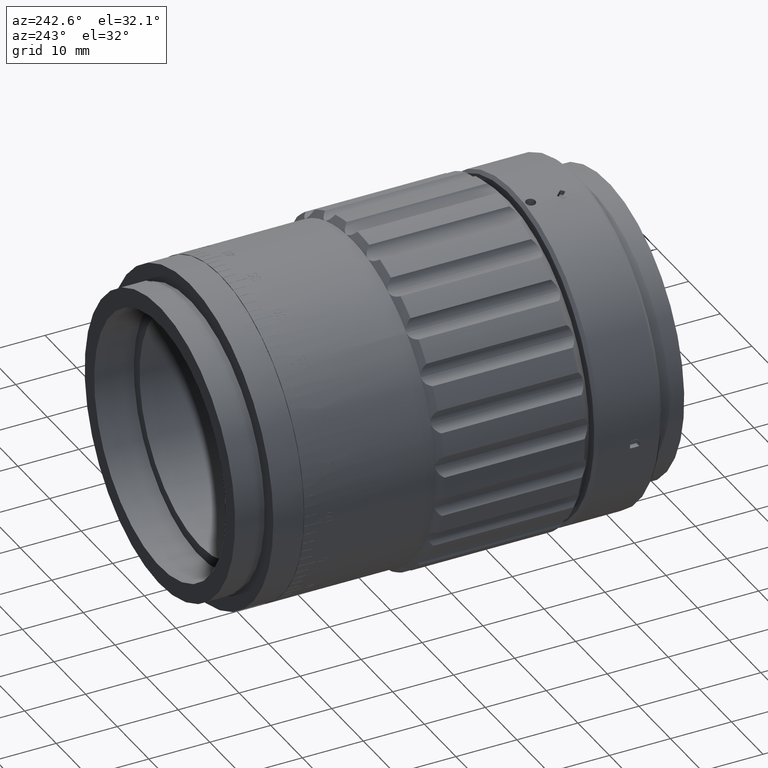
[diagram: clean part render]
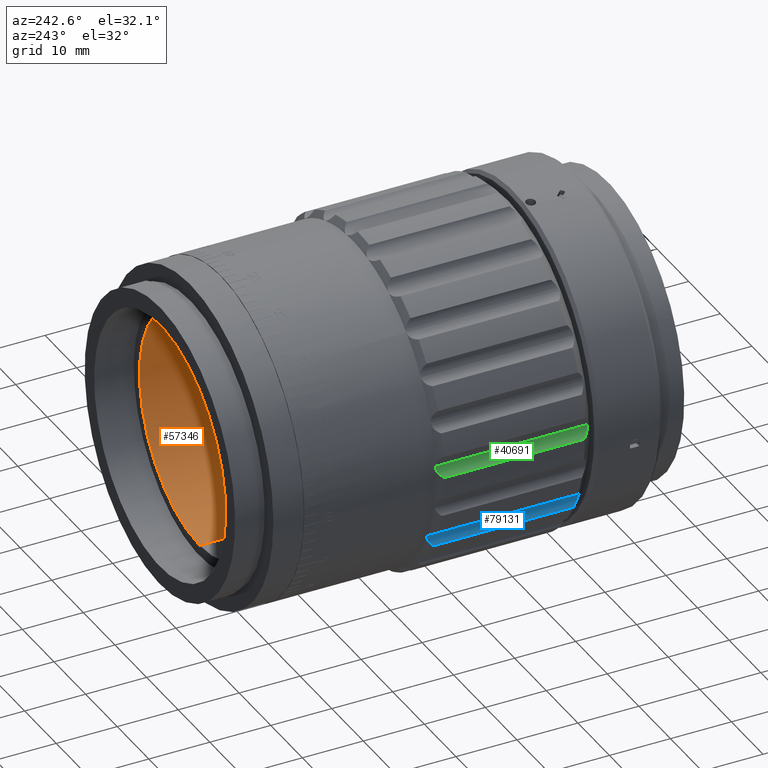
[diagram: same view with three faces highlighted in distinct colors, each labeled with its STEP entity id]
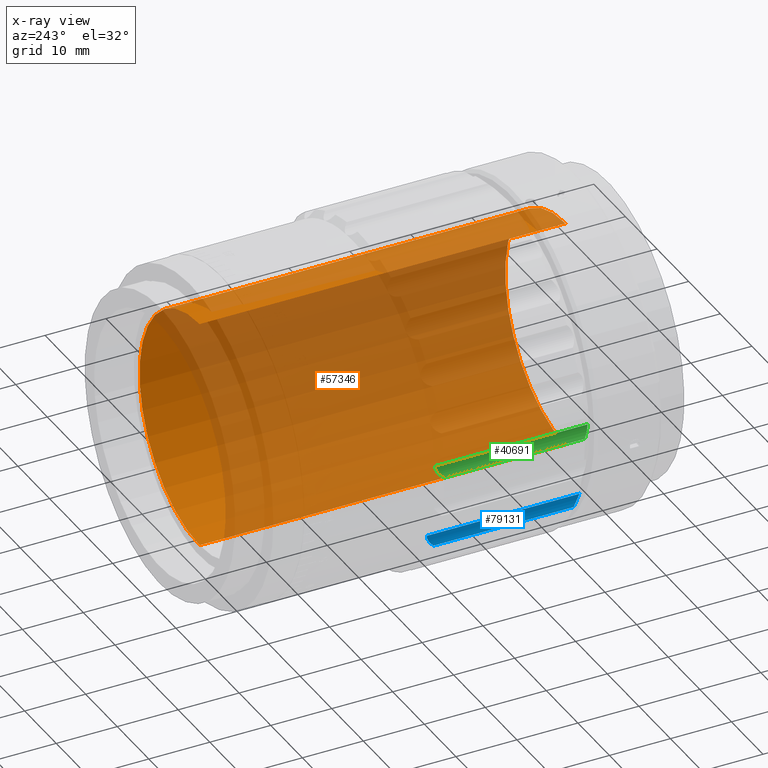
[diagram: x-ray of the same camera — body ghosted, the three highlighted faces saturated]
A machine part, auxiliary view with three faces highlighted in distinct colors.
The next image is the same camera in x-ray (body ghosted, the three faces saturated) — at least one of them is partly hidden behind the body in this view.
Their STEP definitions:

[orange] entity #57346 — the highlighted cylindrical surface (partial cylindrical patch) has radius 19 mm, axis along (0, 1, 0).
#149 = VERTEX_POINT ( 'NONE', #51532 ) ;
#308 = CARTESIAN_POINT ( 'NONE',  ( 0.0000000000000000000, -28.58506430359079100, 0.0000000000000000000 ) ) ;
#2826 = LINE ( 'NONE', #38798, #59149 ) ;
#5762 = CARTESIAN_POINT ( 'NONE',  ( 0.0000000000000000000, -28.58506430359079100, 19.00000000000000400 ) ) ;
#9082 = AXIS2_PLACEMENT_3D ( 'NONE', #12824, #39095, #58891 ) ;
#9219 = CARTESIAN_POINT ( 'NONE',  ( 2.326828918379971400E-015, 50.21546698855554800, -19.00000000000000400 ) ) ;
#9410 = CARTESIAN_POINT ( 'NONE',  ( 0.0000000000000000000, 31.41493569640920600, 19.00000000000000400 ) ) ;
#10496 = ORIENTED_EDGE ( 'NONE', *, *, #77984, .F. ) ;
#12243 = AXIS2_PLACEMENT_3D ( 'NONE', #308, #86326, #72298 ) ;
#12824 = CARTESIAN_POINT ( 'NONE',  ( 0.0000000000000000000, 31.41493569640920600, 0.0000000000000000000 ) ) ;
#15048 = VERTEX_POINT ( 'NONE', #5762 ) ;
#16673 = VECTOR ( 'NONE', #35498, 1000.000000000000000 ) ;
#18229 = VERTEX_POINT ( 'NONE', #77287 ) ;
#18421 = EDGE_CURVE ( 'NONE', #38336, #149, #41631, .T. ) ;
#18834 = CYLINDRICAL_SURFACE ( 'NONE', #29089, 19.00000000000000400 ) ;
#27228 = ORIENTED_EDGE ( 'NONE', *, *, #59373, .F. ) ;
#29089 = AXIS2_PLACEMENT_3D ( 'NONE', #78104, #84820, #44915 ) ;
#29319 = FACE_OUTER_BOUND ( 'NONE', #42133, .T. ) ;
#30264 = LINE ( 'NONE', #9219, #16673 ) ;
#35498 = DIRECTION ( 'NONE',  ( -0.0000000000000000000, 1.000000000000000000, -0.0000000000000000000 ) ) ;
#38336 = VERTEX_POINT ( 'NONE', #9410 ) ;
#38798 = CARTESIAN_POINT ( 'NONE',  ( 0.0000000000000000000, 50.21546698855554800, 19.00000000000000400 ) ) ;
#39095 = DIRECTION ( 'NONE',  ( -0.0000000000000000000, 1.000000000000000000, -0.0000000000000000000 ) ) ;
#41631 = CIRCLE ( 'NONE', #9082, 19.00000000000000400 ) ;
#42133 = EDGE_LOOP ( 'NONE', ( #27228, #10496, #67117, #80579 ) ) ;
#44915 = DIRECTION ( 'NONE',  ( 0.0000000000000000000, 0.0000000000000000000, 1.000000000000000000 ) ) ;
#51532 = CARTESIAN_POINT ( 'NONE',  ( 2.326828918379971400E-015, 31.41493569640920600, -19.00000000000000400 ) ) ;
#57346 = ADVANCED_FACE ( 'NONE', ( #29319 ), #18834, .F. ) ;
#58891 = DIRECTION ( 'NONE',  ( 0.0000000000000000000, 0.0000000000000000000, 1.000000000000000000 ) ) ;
#59149 = VECTOR ( 'NONE', #78984, 1000.000000000000000 ) ;
#59373 = EDGE_CURVE ( 'NONE', #18229, #149, #30264, .T. ) ;
#67117 = ORIENTED_EDGE ( 'NONE', *, *, #72872, .T. ) ;
#69251 = CIRCLE ( 'NONE', #12243, 19.00000000000000400 ) ;
#72298 = DIRECTION ( 'NONE',  ( 0.0000000000000000000, 0.0000000000000000000, 1.000000000000000000 ) ) ;
#72872 = EDGE_CURVE ( 'NONE', #15048, #38336, #2826, .T. ) ;
#77287 = CARTESIAN_POINT ( 'NONE',  ( 2.326828918379971400E-015, -28.58506430359079100, -19.00000000000000400 ) ) ;
#77984 = EDGE_CURVE ( 'NONE', #15048, #18229, #69251, .T. ) ;
#78104 = CARTESIAN_POINT ( 'NONE',  ( 0.0000000000000000000, 50.21546698855554800, 0.0000000000000000000 ) ) ;
#78984 = DIRECTION ( 'NONE',  ( -0.0000000000000000000, 1.000000000000000000, -0.0000000000000000000 ) ) ;
#80579 = ORIENTED_EDGE ( 'NONE', *, *, #18421, .T. ) ;
#84820 = DIRECTION ( 'NONE',  ( -0.0000000000000000000, 1.000000000000000000, -0.0000000000000000000 ) ) ;
#86326 = DIRECTION ( 'NONE',  ( -0.0000000000000000000, 1.000000000000000000, -0.0000000000000000000 ) ) ;

[blue] entity #79131 — the highlighted cylindrical surface (edge-blend (fillet) strip) has radius 2 mm, axis along (0, -1, -0).
#1135 = AXIS2_PLACEMENT_3D ( 'NONE', #21131, #41588, #74762 ) ;
#4705 = CARTESIAN_POINT ( 'NONE',  ( 25.35555294008817700, -28.21457821189758900, -6.793999933940936500 ) ) ;
#6621 = CYLINDRICAL_SURFACE ( 'NONE', #1135, 2.000000000000000900 ) ;
#8711 = FACE_OUTER_BOUND ( 'NONE', #32370, .T. ) ;
#9061 = EDGE_CURVE ( 'NONE', #47156, #37376, #35442, .T. ) ;
#10271 = CARTESIAN_POINT ( 'NONE',  ( 25.35555294008817700, -3.214578211897677600, -6.793999933940936500 ) ) ;
#11404 = CARTESIAN_POINT ( 'NONE',  ( 26.03674008737553100, -27.80261297679607700, -5.741797412623846200 ) ) ;
#16695 = B_SPLINE_CURVE_WITH_KNOTS ( 'NONE', 3,
 ( #10271, #83448, #57516, #30708, #31263, #51089, #17544, #17256, #77305, #70322, #24252, #36820 ),
 .UNSPECIFIED., .F., .F.,
 ( 4, 2, 2, 2, 2, 4 ),
 ( 0.002293443254639925900, 0.002866010891116044200, 0.003152294709354099700, 0.003438578527592155200, 0.004011146164068267800, 0.004583713800544380500 ),
 .UNSPECIFIED. ) ;
#17256 = CARTESIAN_POINT ( 'NONE',  ( 26.03500145421320500, -3.625167664365868300, -5.743276939198813700 ) ) ;
#17544 = CARTESIAN_POINT ( 'NONE',  ( 25.85179847188839400, -3.484700486296729700, -5.916610212781281000 ) ) ;
#20073 = ORIENTED_EDGE ( 'NONE', *, *, #85860, .T. ) ;
#21131 = CARTESIAN_POINT ( 'NONE',  ( 27.28740459266632000, -2.714578211897591900, -7.311638024145959300 ) ) ;
#23824 = CARTESIAN_POINT ( 'NONE',  ( 26.71025809580777400, -15.71457821189758900, -5.396722380791423700 ) ) ;
#24252 = CARTESIAN_POINT ( 'NONE',  ( 26.57095742270228900, -4.086351499841624600, -5.438706943282136700 ) ) ;
#25357 = VERTEX_POINT ( 'NONE', #49512 ) ;
#29629 = CARTESIAN_POINT ( 'NONE',  ( 25.35555294008817700, -2.714578211897591900, -6.793999933940936500 ) ) ;
#30708 = CARTESIAN_POINT ( 'NONE',  ( 25.62790973901661600, -3.329652064939127700, -6.191536951654347500 ) ) ;
#31263 = CARTESIAN_POINT ( 'NONE',  ( 25.68124262155243500, -3.364064236255757100, -6.116614672561725600 ) ) ;
#31828 = CARTESIAN_POINT ( 'NONE',  ( 26.71025809580777700, -27.21457821189765600, -5.396722380791422000 ) ) ;
#32370 = EDGE_LOOP ( 'NONE', ( #86196, #20073, #57819, #62638 ) ) ;
#33870 = CARTESIAN_POINT ( 'NONE',  ( 25.35555294008817700, -3.214578211897677600, -6.793999933940936500 ) ) ;
#35442 = LINE ( 'NONE', #29629, #71872 ) ;
#36820 = CARTESIAN_POINT ( 'NONE',  ( 26.71025809580777400, -4.214578211897617200, -5.396722380791427300 ) ) ;
#37376 = VERTEX_POINT ( 'NONE', #63904 ) ;
#41588 = DIRECTION ( 'NONE',  ( 0.0000000000000000000, -1.000000000000000000, 0.0000000000000000000 ) ) ;
#44039 = CARTESIAN_POINT ( 'NONE',  ( 26.71025809580777700, -27.21457821189765600, -5.396722380791422000 ) ) ;
#44681 = CARTESIAN_POINT ( 'NONE',  ( 25.79361144829318800, -27.98722358619831100, -5.978816331310564000 ) ) ;
#47156 = VERTEX_POINT ( 'NONE', #33870 ) ;
#49512 = CARTESIAN_POINT ( 'NONE',  ( 26.71025809580777400, -4.214578211897617200, -5.396722380791427300 ) ) ;
#50901 = EDGE_CURVE ( 'NONE', #25357, #55207, #57881, .T. ) ;
#51089 = CARTESIAN_POINT ( 'NONE',  ( 25.79310948796995400, -3.441570337347433600, -5.979377078098024400 ) ) ;
#51644 = CARTESIAN_POINT ( 'NONE',  ( 26.43456949145854300, -27.46488145372640600, -5.496128974198046400 ) ) ;
#52206 = CARTESIAN_POINT ( 'NONE',  ( 25.85247284668944400, -27.94395996729930700, -5.915890483584274100 ) ) ;
#55207 = VERTEX_POINT ( 'NONE', #44039 ) ;
#55874 = DIRECTION ( 'NONE',  ( 0.0000000000000000000, -1.000000000000000000, 0.0000000000000000000 ) ) ;
#57516 = CARTESIAN_POINT ( 'NONE',  ( 25.48350592457169800, -3.245789140871165700, -6.428378196692915700 ) ) ;
#57819 = ORIENTED_EDGE ( 'NONE', *, *, #50901, .T. ) ;
#57881 = LINE ( 'NONE', #23824, #80858 ) ;
#58906 = CARTESIAN_POINT ( 'NONE',  ( 25.38046732151844900, -28.21457821189758900, -6.701018196604028500 ) ) ;
#59060 = DIRECTION ( 'NONE',  ( 0.0000000000000000000, -1.000000000000000000, 0.0000000000000000000 ) ) ;
#61168 = B_SPLINE_CURVE_WITH_KNOTS ( 'NONE', 3,
 ( #31828, #64741, #51644, #65601, #11404, #52206, #44681, #85423, #71716, #78142, #84573, #72289, #58906, #4705 ),
 .UNSPECIFIED., .F., .F.,
 ( 4, 2, 2, 2, 2, 2, 4 ),
 ( 2.979895395331365200E-007, 0.0005735843058146322200, 0.001146870622089731400, 0.001433513780227277500, 0.001720156938364823800, 0.002006800096502369500, 0.002293443254639916000 ),
 .UNSPECIFIED. ) ;
#62638 = ORIENTED_EDGE ( 'NONE', *, *, #76867, .T. ) ;
#63904 = CARTESIAN_POINT ( 'NONE',  ( 25.35555294008817700, -28.21457821189758900, -6.793999933940936500 ) ) ;
#64741 = CARTESIAN_POINT ( 'NONE',  ( 26.57092865736917600, -27.34283140253414900, -5.438715613017172300 ) ) ;
#65601 = CARTESIAN_POINT ( 'NONE',  ( 26.16838091974778300, -27.69403601927519500, -5.646949813175882400 ) ) ;
#70322 = CARTESIAN_POINT ( 'NONE',  ( 26.43438767811499400, -3.964103246584266900, -5.496167468345171300 ) ) ;
#71716 = CARTESIAN_POINT ( 'NONE',  ( 25.62829416568200000, -28.09926723534074000, -6.190957049776919500 ) ) ;
#71872 = VECTOR ( 'NONE', #55874, 1000.000000000000000 ) ;
#72289 = CARTESIAN_POINT ( 'NONE',  ( 25.41263282693801500, -28.20691269605203300, -6.608484231365476800 ) ) ;
#74762 = DIRECTION ( 'NONE',  ( -0.9659258262890708700, 0.0000000000000000000, 0.2588190451025114100 ) ) ;
#76867 = EDGE_CURVE ( 'NONE', #55207, #37376, #61168, .T. ) ;
#77305 = CARTESIAN_POINT ( 'NONE',  ( 26.16728733572479000, -3.734194245562724800, -5.647634260270391900 ) ) ;
#78142 = CARTESIAN_POINT ( 'NONE',  ( 25.53184691874164300, -28.15530689563528800, -6.349042310066058900 ) ) ;
#79131 = ADVANCED_FACE ( 'NONE', ( #8711 ), #6621, .F. ) ;
#80858 = VECTOR ( 'NONE', #59060, 1000.000000000000000 ) ;
#83448 = CARTESIAN_POINT ( 'NONE',  ( 25.40531923690991400, -3.214578211897677100, -6.608269585697667200 ) ) ;
#84573 = CARTESIAN_POINT ( 'NONE',  ( 25.48850088724458000, -28.17713089429709700, -6.432354288089431500 ) ) ;
#85423 = CARTESIAN_POINT ( 'NONE',  ( 25.68172991532855700, -28.06476916104586600, -6.115962293178297300 ) ) ;
#85860 = EDGE_CURVE ( 'NONE', #47156, #25357, #16695, .T. ) ;
#86196 = ORIENTED_EDGE ( 'NONE', *, *, #9061, .F. ) ;

[green] entity #40691 — the highlighted cylindrical surface (edge-blend (fillet) strip) has radius 2 mm, axis along (0, -1, -0).
#68 = VERTEX_POINT ( 'NONE', #10202 ) ;
#1948 = VERTEX_POINT ( 'NONE', #82014 ) ;
#2531 = VECTOR ( 'NONE', #52424, 1000.000000000000000 ) ;
#3059 = CARTESIAN_POINT ( 'NONE',  ( 20.14476752856132100, -3.964103246584266000, -17.97701449009805000 ) ) ;
#3096 = CYLINDRICAL_SURFACE ( 'NONE', #40520, 2.000000000000000000 ) ;
#3361 = CARTESIAN_POINT ( 'NONE',  ( 19.34779952012637600, -3.441570337347436200, -18.07484719242425800 ) ) ;
#7024 = ORIENTED_EDGE ( 'NONE', *, *, #9106, .T. ) ;
#7502 = DIRECTION ( 'NONE',  ( 0.0000000000000000000, -1.000000000000000000, 0.0000000000000000000 ) ) ;
#9106 = EDGE_CURVE ( 'NONE', #25708, #1948, #37363, .T. ) ;
#10202 = CARTESIAN_POINT ( 'NONE',  ( 18.56155300614708300, -28.21457821189759200, -18.56155300614676000 ) ) ;
#12743 = CARTESIAN_POINT ( 'NONE',  ( 19.83900774582160100, -27.69403601927518500, -17.97459245198000800 ) ) ;
#16478 = CARTESIAN_POINT ( 'NONE',  ( 19.09865240405580900, -3.329652064939125500, -18.17598315811105200 ) ) ;
#18824 = VERTEX_POINT ( 'NONE', #22955 ) ;
#19140 = CARTESIAN_POINT ( 'NONE',  ( 19.18304937321613900, -28.06476916104587000, -18.13744367214442800 ) ) ;
#19432 = CARTESIAN_POINT ( 'NONE',  ( 18.70374348949192000, -28.20691269605203300, -18.42943163834040700 ) ) ;
#19717 = CARTESIAN_POINT ( 'NONE',  ( 19.09927527825264400, -28.09926723534073600, -18.17567316168619800 ) ) ;
#20879 = CARTESIAN_POINT ( 'NONE',  ( 20.43340086221276800, -15.71457821189758900, -18.02882772684132100 ) ) ;
#22955 = CARTESIAN_POINT ( 'NONE',  ( 20.43340086221277100, -27.21457821189765600, -18.02882772684132100 ) ) ;
#25708 = VERTEX_POINT ( 'NONE', #76111 ) ;
#26454 = CARTESIAN_POINT ( 'NONE',  ( 18.93670688213265100, -28.15530689563527700, -18.26435538959027500 ) ) ;
#26569 = ORIENTED_EDGE ( 'NONE', *, *, #51821, .T. ) ;
#30540 = DIRECTION ( 'NONE',  ( -0.7071067811865536800, 0.0000000000000000000, 0.7071067811865415800 ) ) ;
#35536 = ORIENTED_EDGE ( 'NONE', *, *, #51572, .F. ) ;
#35761 = CARTESIAN_POINT ( 'NONE',  ( 20.43340086221276400, -4.214578211897617200, -18.02882772684132800 ) ) ;
#36052 = CARTESIAN_POINT ( 'NONE',  ( 18.85517440982386400, -3.245789140871163000, -18.30889178575593600 ) ) ;
#36924 = CARTESIAN_POINT ( 'NONE',  ( 18.69751705756862100, -3.214578211897677100, -18.42558895472522500 ) ) ;
#37363 = B_SPLINE_CURVE_WITH_KNOTS ( 'NONE', 3,
 ( #69543, #36924, #36052, #16478, #43366, #3361, #82664, #50038, #76235, #3059, #56750, #35761 ),
 .UNSPECIFIED., .F., .F.,
 ( 4, 2, 2, 2, 2, 4 ),
 ( 0.002293443254639929000, 0.002866010891116042500, 0.003152294709354096700, 0.003438578527592150800, 0.004011146164068267800, 0.004583713800544384800 ),
 .UNSPECIFIED. ) ;
#39701 = FACE_OUTER_BOUND ( 'NONE', #55500, .T. ) ;
#39893 = CARTESIAN_POINT ( 'NONE',  ( 18.56155300614708300, -28.21457821189759200, -18.56155300614676000 ) ) ;
#40520 = AXIS2_PLACEMENT_3D ( 'NONE', #41948, #55318, #30540 ) ;
#40691 = ADVANCED_FACE ( 'NONE', ( #39701 ), #3096, .F. ) ;
#41948 = CARTESIAN_POINT ( 'NONE',  ( 19.97576656852019300, -2.714578211897591900, -19.97576656851984100 ) ) ;
#43366 = CARTESIAN_POINT ( 'NONE',  ( 19.18230117473519400, -3.364064236255757100, -18.13776500237532500 ) ) ;
#46004 = CARTESIAN_POINT ( 'NONE',  ( 20.29174141291704800, -27.34283140253414100, -17.99553021351654200 ) ) ;
#50038 = CARTESIAN_POINT ( 'NONE',  ( 19.67533417731401700, -3.625167664365867500, -17.99132445742213400 ) ) ;
#51572 = EDGE_CURVE ( 'NONE', #25708, #68, #66123, .T. ) ;
#51821 = EDGE_CURVE ( 'NONE', #1948, #18824, #54698, .T. ) ;
#52410 = CARTESIAN_POINT ( 'NONE',  ( 20.14494423060914500, -27.46488145372640900, -17.97707205986050700 ) ) ;
#52424 = DIRECTION ( 'NONE',  ( 0.0000000000000000000, -1.000000000000000000, 0.0000000000000000000 ) ) ;
#52706 = CARTESIAN_POINT ( 'NONE',  ( 19.43095299408830500, -27.94395996729931400, -18.04954786813533500 ) ) ;
#54698 = LINE ( 'NONE', #20879, #80762 ) ;
#55318 = DIRECTION ( 'NONE',  ( 0.0000000000000000000, -1.000000000000000000, 0.0000000000000000000 ) ) ;
#55500 = EDGE_LOOP ( 'NONE', ( #35536, #7024, #26569, #65781 ) ) ;
#56750 = CARTESIAN_POINT ( 'NONE',  ( 20.29177065929378900, -4.086351499841623700, -17.99553708797231600 ) ) ;
#59401 = CARTESIAN_POINT ( 'NONE',  ( 19.34851460391172800, -27.98722358619830800, -18.07461255162284200 ) ) ;
#65781 = ORIENTED_EDGE ( 'NONE', *, *, #74317, .T. ) ;
#65802 = CARTESIAN_POINT ( 'NONE',  ( 18.62962036205372800, -28.21457821189758500, -18.49348565024011400 ) ) ;
#66123 = LINE ( 'NONE', #79511, #2531 ) ;
#66705 = B_SPLINE_CURVE_WITH_KNOTS ( 'NONE', 3,
 ( #71907, #46004, #52410, #12743, #85924, #52706, #59401, #19140, #19717, #26454, #78631, #19432, #65802, #39893 ),
 .UNSPECIFIED., .F., .F.,
 ( 4, 2, 2, 2, 2, 2, 4 ),
 ( 2.979895395330392700E-007, 0.0005735843058146279900, 0.001146870622089723000, 0.001433513780227270400, 0.001720156938364818000, 0.002006800096502365600, 0.002293443254639912900 ),
 .UNSPECIFIED. ) ;
#69543 = CARTESIAN_POINT ( 'NONE',  ( 18.56155300614708300, -3.214578211897676700, -18.56155300614676000 ) ) ;
#71907 = CARTESIAN_POINT ( 'NONE',  ( 20.43340086221277100, -27.21457821189765600, -18.02882772684132100 ) ) ;
#74317 = EDGE_CURVE ( 'NONE', #18824, #68, #66705, .T. ) ;
#76111 = CARTESIAN_POINT ( 'NONE',  ( 18.56155300614708300, -3.214578211897676700, -18.56155300614676000 ) ) ;
#76235 = CARTESIAN_POINT ( 'NONE',  ( 19.83771845072927000, -3.734194245562722600, -17.97463840853991400 ) ) ;
#78631 = CARTESIAN_POINT ( 'NONE',  ( 18.85751212869126900, -28.17713089429709700, -18.31483266324952200 ) ) ;
#79511 = CARTESIAN_POINT ( 'NONE',  ( 18.56155300614708300, -2.714578211897591900, -18.56155300614676000 ) ) ;
#80762 = VECTOR ( 'NONE', #7502, 1000.000000000000000 ) ;
#82014 = CARTESIAN_POINT ( 'NONE',  ( 20.43340086221276400, -4.214578211897617200, -18.02882772684132800 ) ) ;
#82664 = CARTESIAN_POINT ( 'NONE',  ( 19.43000910378043100, -3.484700486296729200, -18.04983398450326600 ) ) ;
#85924 = CARTESIAN_POINT ( 'NONE',  ( 19.67757964108792700, -27.80261297679607300, -17.99091246640379500 ) ) ;